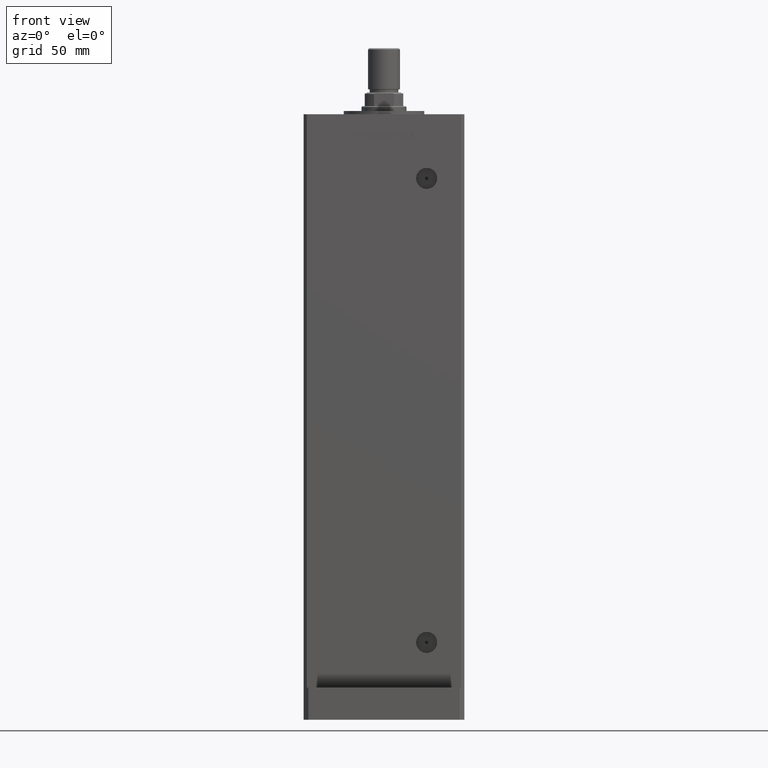
[diagram: clean part render]
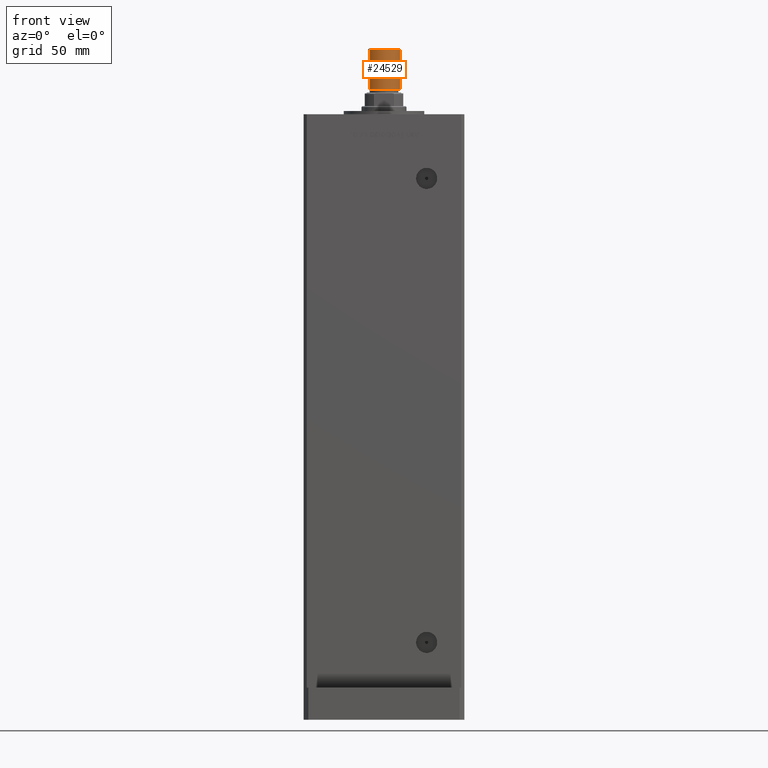
[diagram: same view with one face highlighted and labeled with its STEP entity id]
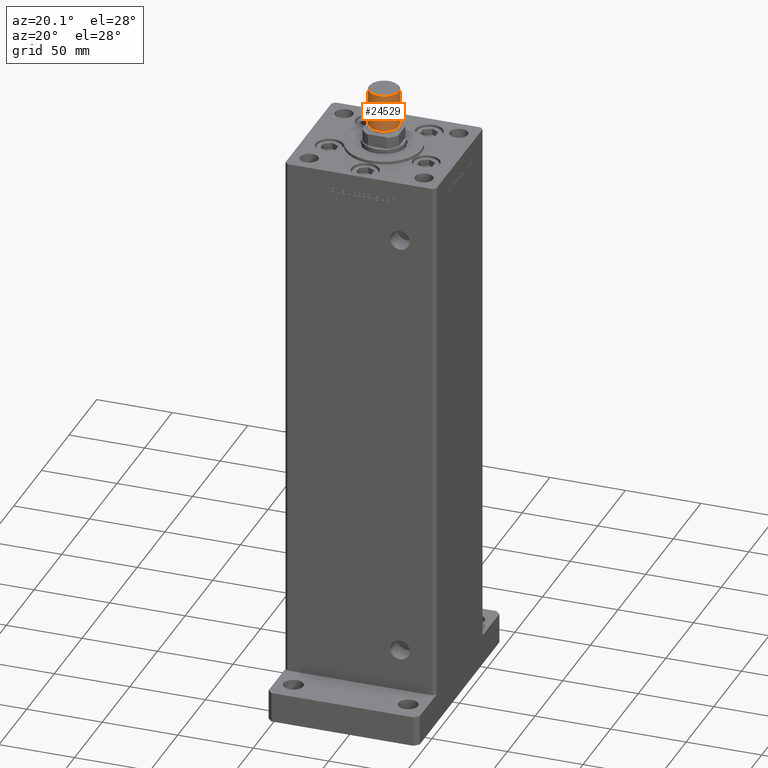
[diagram: same view with one face highlighted and labeled with its STEP entity id]
A machine part, front view. The second image highlights one B-rep face of the part: STEP entity #24529.
A second angle (auxiliary view) of the same face is appended — the face is thin or edge-on in the first view.
In plain terms, the highlighted cylindrical surface (edge-blend (fillet) strip) has radius 10 mm, axis along (0, 0, 1).
Its self-contained STEP definition (entity closure, byte-faithful):
#223 = ORIENTED_EDGE ( 'NONE', *, *, #52850, .T. ) ;
#4056 = AXIS2_PLACEMENT_3D ( 'NONE', #51307, #17337, #38695 ) ;
#4658 = VERTEX_POINT ( 'NONE', #7570 ) ;
#5987 = EDGE_CURVE ( 'NONE', #47599, #4658, #7709, .T. ) ;
#7432 = EDGE_LOOP ( 'NONE', ( #43044, #10462, #223, #18353 ) ) ;
#7570 = CARTESIAN_POINT ( 'NONE',  ( 10.00000000000000000, 1.224646799147353256E-15, 0.7999999999999986011 ) ) ;
#7709 = LINE ( 'NONE', #41114, #50690 ) ;
#10462 = ORIENTED_EDGE ( 'NONE', *, *, #27265, .F. ) ;
#14134 = DIRECTION ( 'NONE',  ( -1.000000000000000000, 0.000000000000000000, 0.000000000000000000 ) ) ;
#17337 = DIRECTION ( 'NONE',  ( -0.000000000000000000, -0.000000000000000000, 1.000000000000000000 ) ) ;
#17394 = DIRECTION ( 'NONE',  ( -0.000000000000000000, -0.000000000000000000, -1.000000000000000000 ) ) ;
#18353 = ORIENTED_EDGE ( 'NONE', *, *, #46538, .T. ) ;
#22914 = DIRECTION ( 'NONE',  ( 1.000000000000000000, 0.000000000000000000, 0.000000000000000000 ) ) ;
#23581 = AXIS2_PLACEMENT_3D ( 'NONE', #35206, #39309, #14134 ) ;
#24529 = ADVANCED_FACE ( 'NONE', ( #50835 ), #26168, .T. ) ;
#26168 = CYLINDRICAL_SURFACE ( 'NONE', #23581, 10.00000000000000000 ) ;
#27265 = EDGE_CURVE ( 'NONE', #51517, #47599, #42953, .T. ) ;
#27651 = CIRCLE ( 'NONE', #4056, 10.00000000000000000 ) ;
#30553 = LINE ( 'NONE', #46176, #48305 ) ;
#34970 = CARTESIAN_POINT ( 'NONE',  ( 0.000000000000000000, 0.000000000000000000, 25.50000000000000000 ) ) ;
#35206 = CARTESIAN_POINT ( 'NONE',  ( 0.000000000000000000, 0.000000000000000000, 25.50000000000000000 ) ) ;
#38695 = DIRECTION ( 'NONE',  ( 1.000000000000000000, 0.000000000000000000, 0.000000000000000000 ) ) ;
#38904 = CARTESIAN_POINT ( 'NONE',  ( 10.00000000000000000, 1.224646799147353256E-15, 25.50000000000000000 ) ) ;
#39309 = DIRECTION ( 'NONE',  ( -0.000000000000000000, -0.000000000000000000, -1.000000000000000000 ) ) ;
#40513 = CARTESIAN_POINT ( 'NONE',  ( -10.00000000000000000, 0.000000000000000000, 25.50000000000000000 ) ) ;
#40674 = VERTEX_POINT ( 'NONE', #43339 ) ;
#41114 = CARTESIAN_POINT ( 'NONE',  ( 10.00000000000000000, 1.224646799147353256E-15, 25.50000000000000000 ) ) ;
#42953 = CIRCLE ( 'NONE', #53442, 10.00000000000000000 ) ;
#43044 = ORIENTED_EDGE ( 'NONE', *, *, #5987, .F. ) ;
#43339 = CARTESIAN_POINT ( 'NONE',  ( -10.00000000000000000, 0.000000000000000000, 0.7999999999999986011 ) ) ;
#45779 = DIRECTION ( 'NONE',  ( -0.000000000000000000, -0.000000000000000000, -1.000000000000000000 ) ) ;
#46176 = CARTESIAN_POINT ( 'NONE',  ( -10.00000000000000000, 0.000000000000000000, 25.50000000000000000 ) ) ;
#46538 = EDGE_CURVE ( 'NONE', #40674, #4658, #27651, .T. ) ;
#47599 = VERTEX_POINT ( 'NONE', #38904 ) ;
#48305 = VECTOR ( 'NONE', #17394, 1000.000000000000000 ) ;
#48404 = DIRECTION ( 'NONE',  ( 0.000000000000000000, 0.000000000000000000, 1.000000000000000000 ) ) ;
#50690 = VECTOR ( 'NONE', #45779, 1000.000000000000000 ) ;
#50835 = FACE_OUTER_BOUND ( 'NONE', #7432, .T. ) ;
#51307 = CARTESIAN_POINT ( 'NONE',  ( 0.000000000000000000, 0.000000000000000000, 0.7999999999999986011 ) ) ;
#51517 = VERTEX_POINT ( 'NONE', #40513 ) ;
#52850 = EDGE_CURVE ( 'NONE', #51517, #40674, #30553, .T. ) ;
#53442 = AXIS2_PLACEMENT_3D ( 'NONE', #34970, #48404, #22914 ) ;